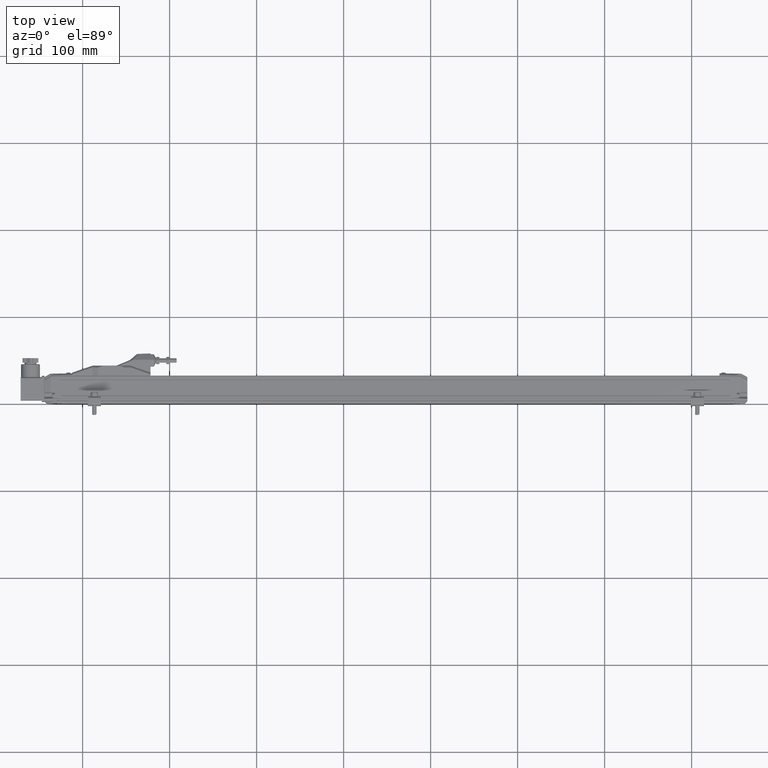
[diagram: clean part render]
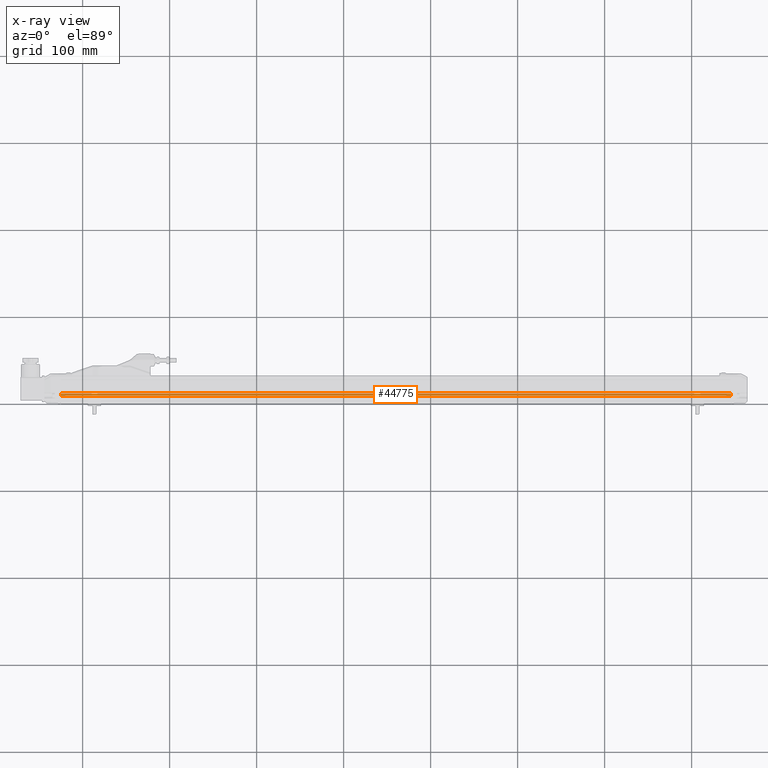
[diagram: x-ray — body ghosted, one internal face saturated and labeled with its STEP entity id]
A machine part, top view, then the same camera in x-ray: the body is ghosted and one INTERNAL B-rep face — a face not visible from any outside direction — is saturated and labeled: STEP entity #44775.
In plain terms, the highlighted planar face has unit normal (-0, -0, -1).
Its self-contained STEP definition (entity closure, byte-faithful):
#513 = EDGE_CURVE ( 'NONE', #4786, #35633, #3079, .T. ) ;
#1027 = VECTOR ( 'NONE', #7030, 39.37007874015748143 ) ;
#2862 = DIRECTION ( 'NONE',  ( 6.829894528618840264E-25, 1.000000000000000000, -1.936991253392630006E-26 ) ) ;
#3079 = LINE ( 'NONE', #24782, #37564 ) ;
#4786 = VERTEX_POINT ( 'NONE', #14819 ) ;
#5012 = ORIENTED_EDGE ( 'NONE', *, *, #44714, .F. ) ;
#7030 = DIRECTION ( 'NONE',  ( 1.000000000000000000, -6.829894528618840264E-25, -1.341063538875720069E-28 ) ) ;
#13989 = VERTEX_POINT ( 'NONE', #32628 ) ;
#14017 = CARTESIAN_POINT ( 'NONE',  ( -4.921259842519685179, 0.4330708573622046864, -0.01377954751968533259 ) ) ;
#14583 = VECTOR ( 'NONE', #2862, 39.37007874015748143 ) ;
#14819 = CARTESIAN_POINT ( 'NONE',  ( 25.39370078740157766, 0.3543307236614173239, -0.01377954751968533259 ) ) ;
#20643 = CARTESIAN_POINT ( 'NONE',  ( -4.921259842519685179, 0.3543307236614173239, -0.01377954751968533259 ) ) ;
#20875 = DIRECTION ( 'NONE',  ( 1.000000000000000000, -6.829894528618840264E-25, -1.341063538875720069E-28 ) ) ;
#24390 = EDGE_CURVE ( 'NONE', #13989, #36403, #45778, .T. ) ;
#24753 = LINE ( 'NONE', #14017, #1027 ) ;
#24782 = CARTESIAN_POINT ( 'NONE',  ( 25.39370078740157766, 0.3543307236614173239, -0.01377954751968533259 ) ) ;
#25677 = EDGE_CURVE ( 'NONE', #13989, #4786, #41432, .T. ) ;
#29062 = EDGE_LOOP ( 'NONE', ( #36502, #5012, #29162, #36128 ) ) ;
#29162 = ORIENTED_EDGE ( 'NONE', *, *, #24390, .F. ) ;
#31792 = CARTESIAN_POINT ( 'NONE',  ( -4.921259842519685179, 0.3543307236614173239, -0.01377954751968533259 ) ) ;
#31889 = VECTOR ( 'NONE', #20875, 39.37007874015748143 ) ;
#31989 = CARTESIAN_POINT ( 'NONE',  ( -4.921259842519685179, 0.3543307236614173239, -0.01377954751968533259 ) ) ;
#32224 = FACE_OUTER_BOUND ( 'NONE', #29062, .T. ) ;
#32628 = CARTESIAN_POINT ( 'NONE',  ( -4.921259842519685179, 0.3543307236614173239, -0.01377954751968533259 ) ) ;
#35474 = DIRECTION ( 'NONE',  ( -1.341063538875720069E-28, -1.936991253392630006E-26, -1.000000000000000000 ) ) ;
#35633 = VERTEX_POINT ( 'NONE', #35806 ) ;
#35806 = CARTESIAN_POINT ( 'NONE',  ( 25.39370078740157766, 0.4330708573622046864, -0.01377954751968533259 ) ) ;
#35959 = PLANE ( 'NONE',  #41997 ) ;
#36128 = ORIENTED_EDGE ( 'NONE', *, *, #25677, .T. ) ;
#36403 = VERTEX_POINT ( 'NONE', #43166 ) ;
#36502 = ORIENTED_EDGE ( 'NONE', *, *, #513, .T. ) ;
#37564 = VECTOR ( 'NONE', #42737, 39.37007874015748143 ) ;
#39688 = DIRECTION ( 'NONE',  ( -1.000000000000000000, 6.829894528618840264E-25, 1.341063538875720069E-28 ) ) ;
#41432 = LINE ( 'NONE', #20643, #31889 ) ;
#41997 = AXIS2_PLACEMENT_3D ( 'NONE', #31989, #35474, #39688 ) ;
#42737 = DIRECTION ( 'NONE',  ( 6.829894528618840264E-25, 1.000000000000000000, -1.936991253392630006E-26 ) ) ;
#43166 = CARTESIAN_POINT ( 'NONE',  ( -4.921259842519685179, 0.4330708573622046864, -0.01377954751968533259 ) ) ;
#44714 = EDGE_CURVE ( 'NONE', #36403, #35633, #24753, .T. ) ;
#44775 = ADVANCED_FACE ( 'NONE', ( #32224 ), #35959, .F. ) ;
#45778 = LINE ( 'NONE', #31792, #14583 ) ;